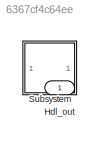
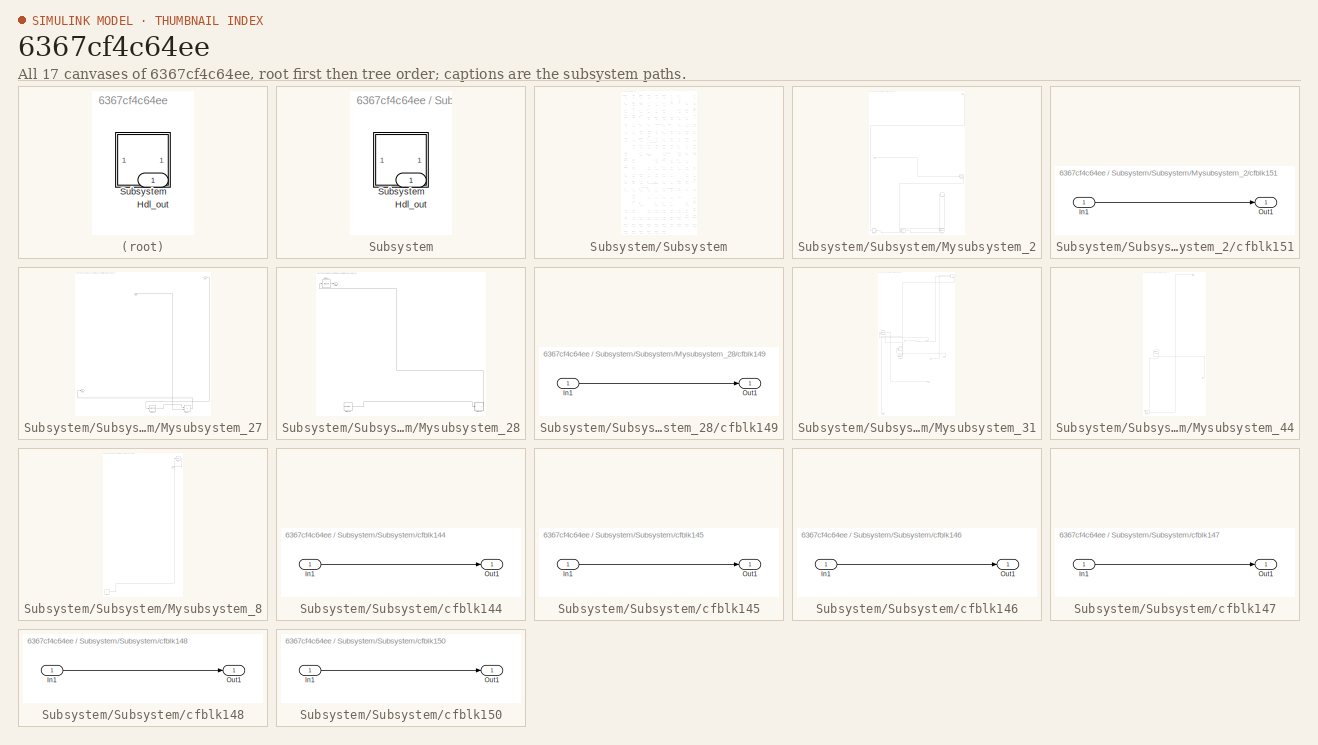
[diagram: thumbnail index - all 17 canvases of the model, root first then tree order]
MODEL slx_6367cf4c64ee
KIND model
CONFIG AbsTol = auto
CONFIG EnableMultiTasking = off
CONFIG FixedStep = auto
CONFIG MaxStep = auto
CONFIG MinStep = auto
CONFIG RelTol = 1e-3
CONFIG SampleTimeConstraint = Unconstrained
CONFIG SolverName = VariableStepAuto
CONFIG StartTime = 0.0
CONFIG StopTime = 10.0
BLOCK [Outport] Hdl_out
  OutDataTypeStr = uint8
BLOCK [SubSystem] Subsystem
BLOCK [Outport] Subsystem/Hdl_out
  OutDataTypeStr = uint8
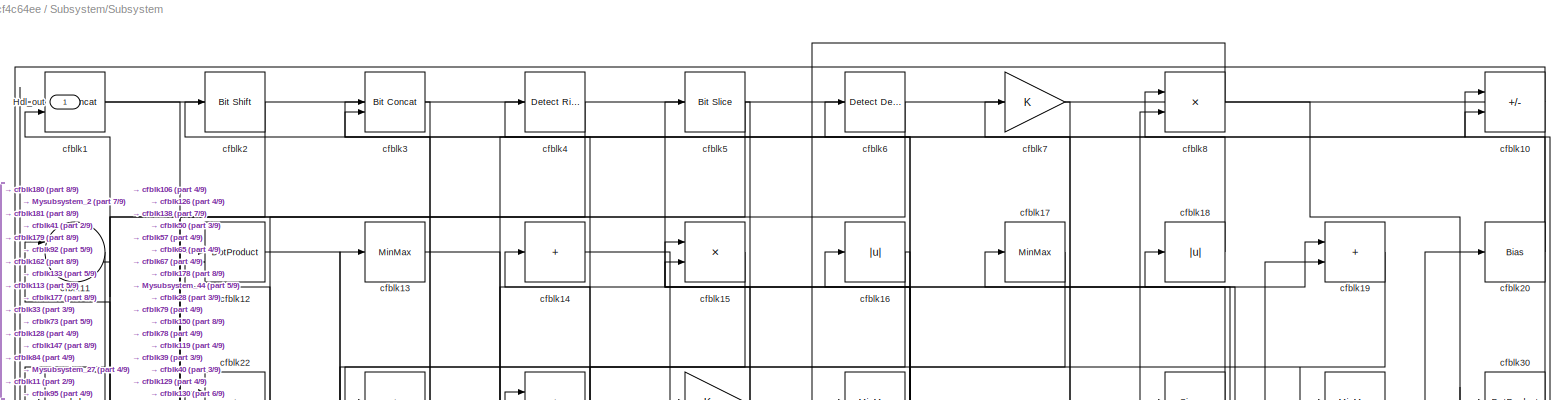
[diagram: Subsystem/Subsystem - part 1/9, full width, top band]
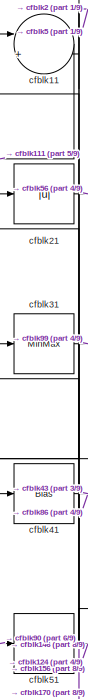
[diagram: Subsystem/Subsystem - part 2/9, top left region]
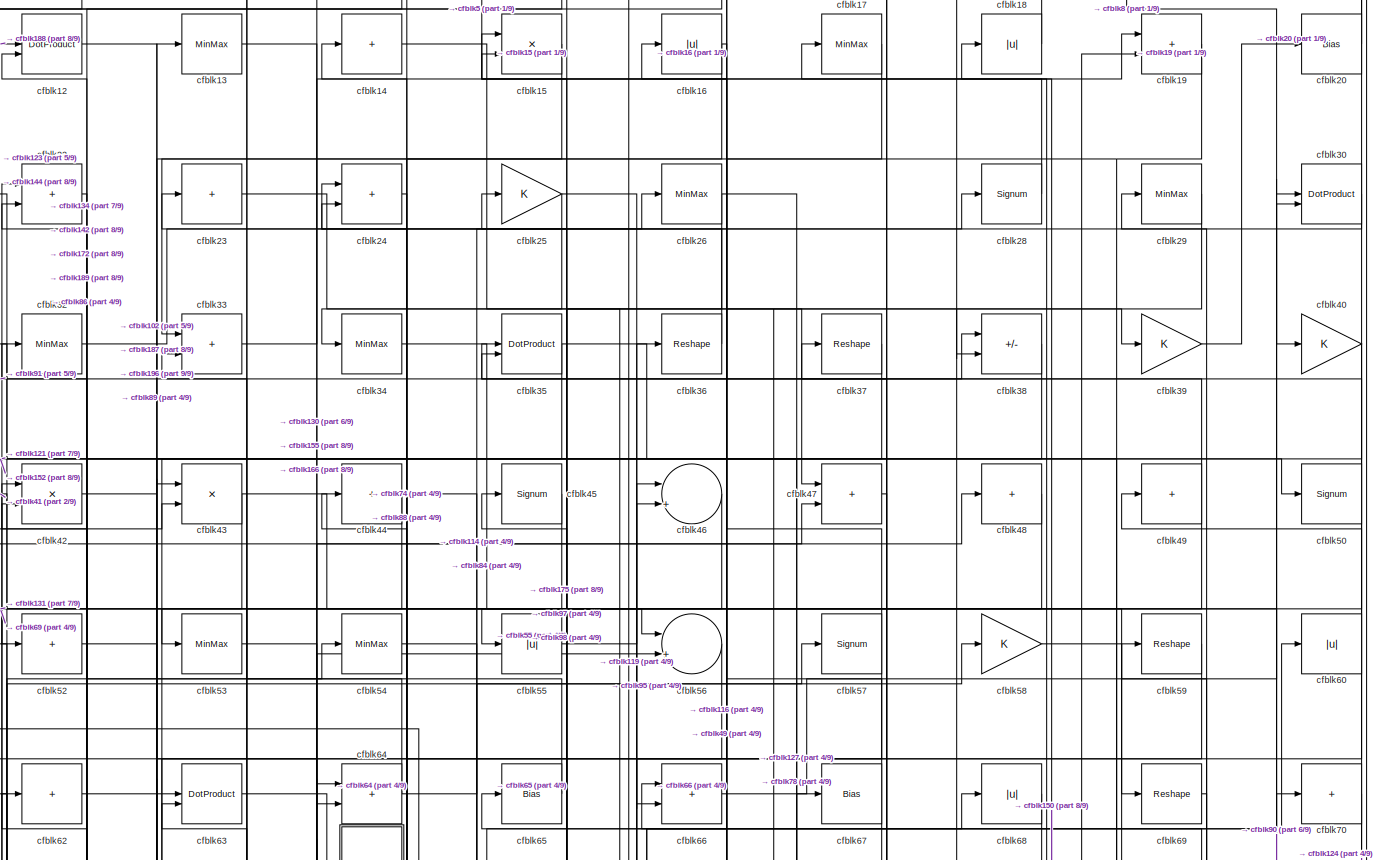
[diagram: Subsystem/Subsystem - part 3/9, full width, top band]
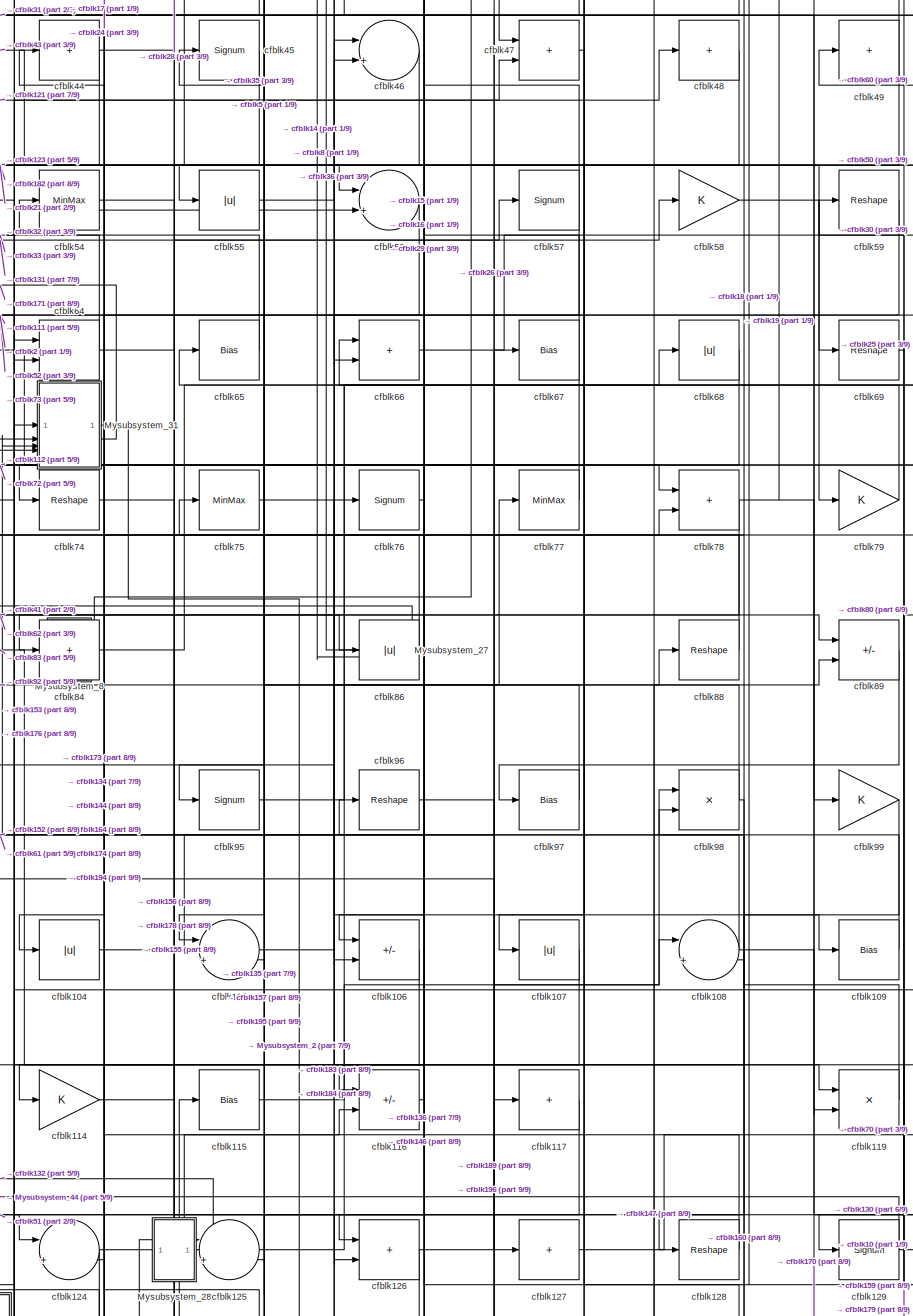
[diagram: Subsystem/Subsystem - part 4/9, central region]
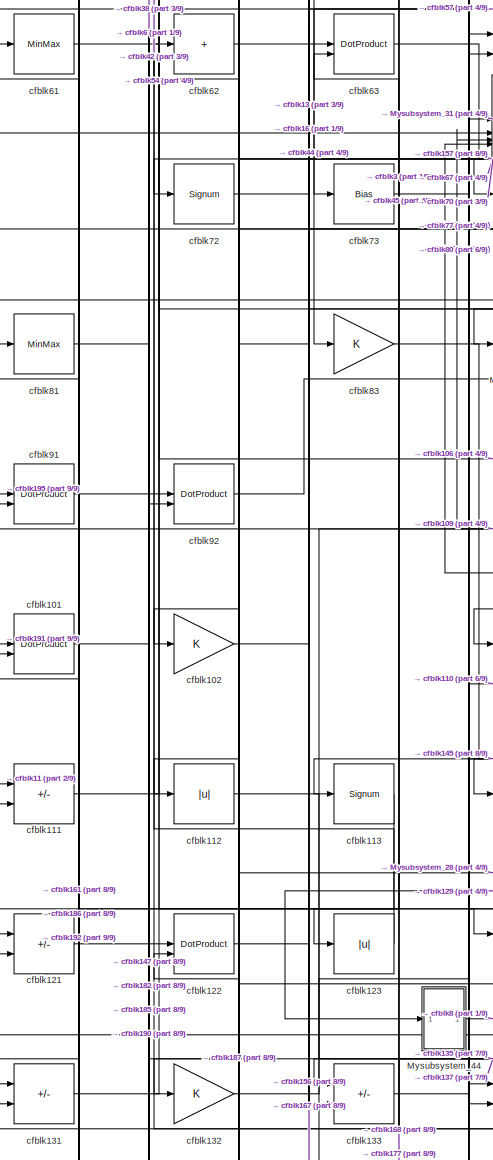
[diagram: Subsystem/Subsystem - part 5/9, middle left region]
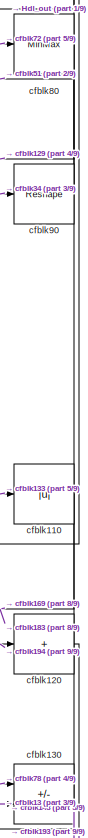
[diagram: Subsystem/Subsystem - part 6/9, middle right region]
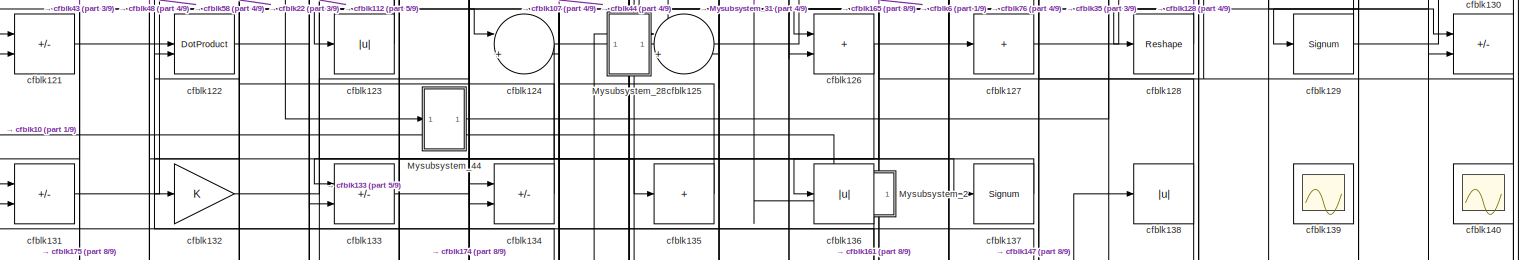
[diagram: Subsystem/Subsystem - part 7/9, full width, middle band]
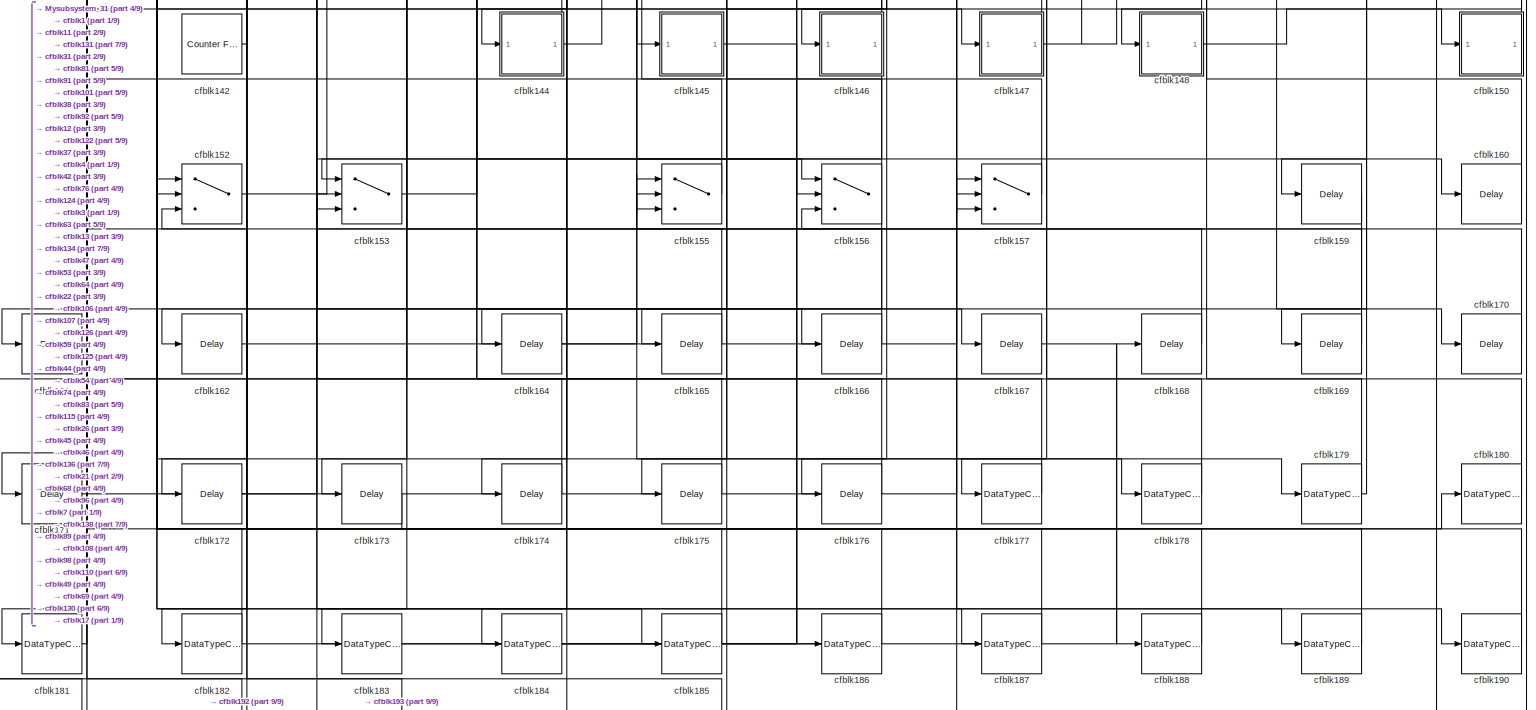
[diagram: Subsystem/Subsystem - part 8/9, full width, bottom band]
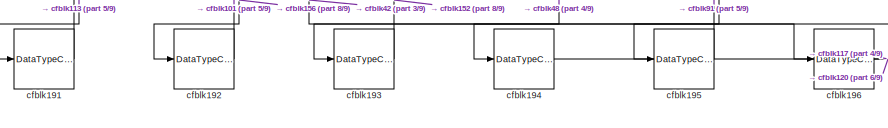
[diagram: Subsystem/Subsystem - part 9/9, bottom left region]
BLOCK [SubSystem] Subsystem/Subsystem
BLOCK [Outport] Subsystem/Subsystem/Hdl_out
  OutDataTypeStr = uint8
BLOCK [SubSystem] Subsystem/Subsystem/Mysubsystem_2
  RTWFcnName = Mysubsystem_2
  RTWFcnNameOpts = User specified
  RTWFileNameOpts = Use function name
  RTWSystemCode = Reusable function
  TreatAsAtomicUnit = on
BLOCK [Inport] Subsystem/Subsystem/Mysubsystem_2/In1
BLOCK [Inport] Subsystem/Subsystem/Mysubsystem_2/In2
  Port = 2
BLOCK [Reshape] Subsystem/Subsystem/Mysubsystem_2/cfblk100
BLOCK [Sum] Subsystem/Subsystem/Mysubsystem_2/cfblk118
  IconShape = rectangular
  Inputs = +
BLOCK [SubSystem] Subsystem/Subsystem/Mysubsystem_2/cfblk151
  LibrarySourceBlock = hdlsllib/Ports &\nSubsystems/Subsystem
BLOCK [Inport] Subsystem/Subsystem/Mysubsystem_2/cfblk151/In1
BLOCK [Outport] Subsystem/Subsystem/Mysubsystem_2/cfblk151/Out1
BLOCK [Switch] Subsystem/Subsystem/Mysubsystem_2/cfblk154
  InputSameDT = off
  SaturateOnIntegerOverflow = off
BLOCK [Delay] Subsystem/Subsystem/Mysubsystem_2/cfblk158
  InputPortMap = u0
  SampleTime = 1
BLOCK [SubSystem] Subsystem/Subsystem/Mysubsystem_27
  RTWFcnName = Mysubsystem_27
  RTWFcnNameOpts = User specified
  RTWFileNameOpts = Use function name
  RTWSystemCode = Reusable function
  TreatAsAtomicUnit = on
BLOCK [Inport] Subsystem/Subsystem/Mysubsystem_27/In1
BLOCK [Inport] Subsystem/Subsystem/Mysubsystem_27/In2
  Port = 2
BLOCK [Outport] Subsystem/Subsystem/Mysubsystem_27/Out1
BLOCK [Signum] Subsystem/Subsystem/Mysubsystem_27/cfblk85
BLOCK [Sum] Subsystem/Subsystem/Mysubsystem_27/cfblk87
  IconShape = rectangular
BLOCK [SubSystem] Subsystem/Subsystem/Mysubsystem_28
  RTWFcnName = Mysubsystem_28
  RTWFcnNameOpts = User specified
  RTWFileNameOpts = Use function name
  RTWSystemCode = Reusable function
  TreatAsAtomicUnit = on
BLOCK [Outport] Subsystem/Subsystem/Mysubsystem_28/Out1
BLOCK [Reference] Subsystem/Subsystem/Mysubsystem_28/cfblk143  REF=hdlsllib/Sources/Counter
Limited
  SourceBlock = hdlsllib/Sources/Counter\nLimited
  SourceType = Counter Limited
BLOCK [SubSystem] Subsystem/Subsystem/Mysubsystem_28/cfblk149
  LibrarySourceBlock = hdlsllib/Ports &\nSubsystems/Subsystem
BLOCK [Inport] Subsystem/Subsystem/Mysubsystem_28/cfblk149/In1
BLOCK [Outport] Subsystem/Subsystem/Mysubsystem_28/cfblk149/Out1
BLOCK [Signum] Subsystem/Subsystem/Mysubsystem_28/cfblk82
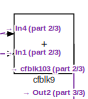
[diagram: Subsystem/Subsystem/Mysubsystem_31 - part 1/3, top right region]
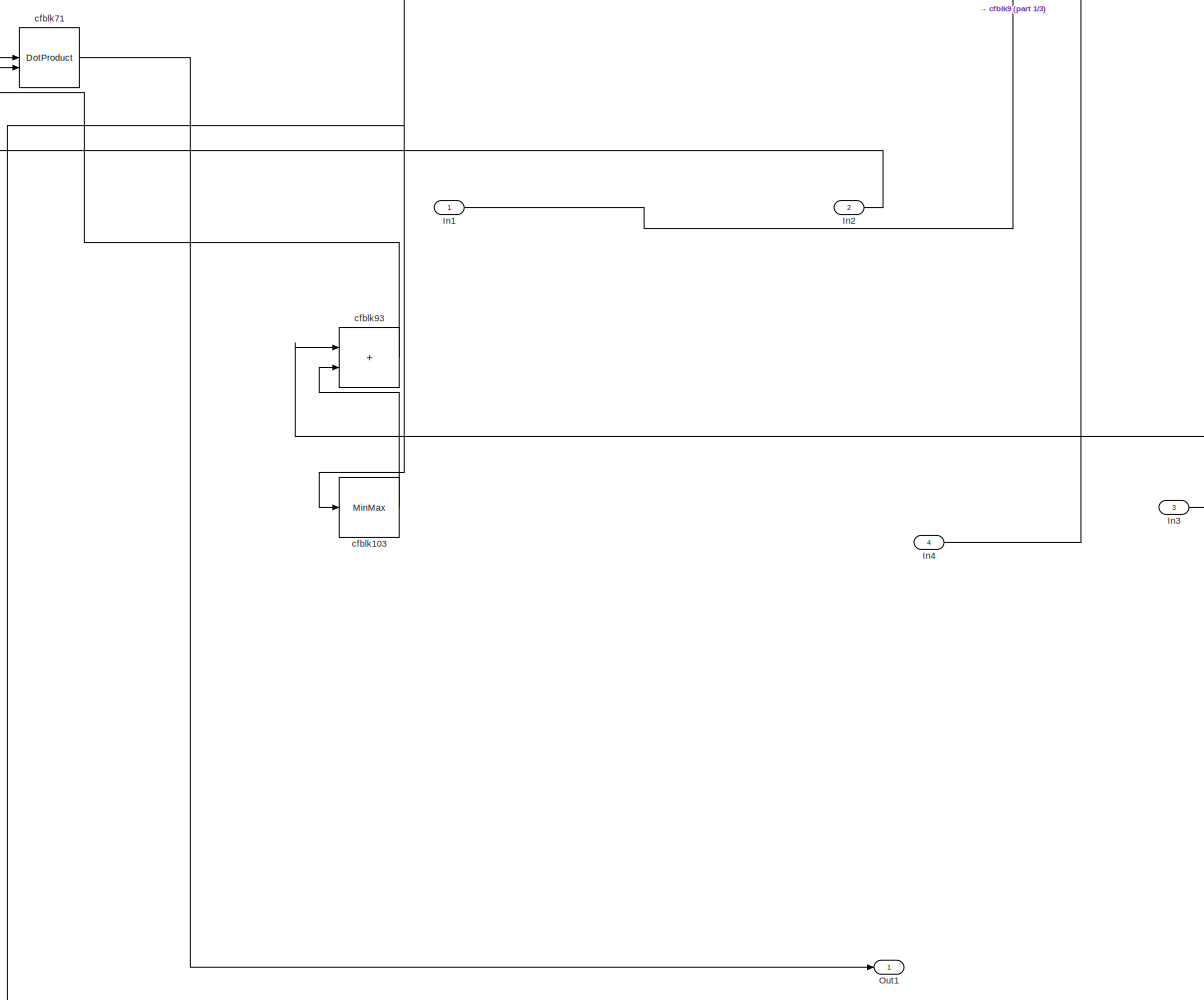
[diagram: Subsystem/Subsystem/Mysubsystem_31 - part 2/3, full width, middle band]
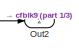
[diagram: Subsystem/Subsystem/Mysubsystem_31 - part 3/3, bottom left region]
BLOCK [SubSystem] Subsystem/Subsystem/Mysubsystem_31
  RTWFcnName = Mysubsystem_31
  RTWFcnNameOpts = User specified
  RTWFileNameOpts = Use function name
  RTWSystemCode = Reusable function
  TreatAsAtomicUnit = on
BLOCK [Inport] Subsystem/Subsystem/Mysubsystem_31/In1
BLOCK [Inport] Subsystem/Subsystem/Mysubsystem_31/In2
  Port = 2
BLOCK [Inport] Subsystem/Subsystem/Mysubsystem_31/In3
  Port = 3
BLOCK [Inport] Subsystem/Subsystem/Mysubsystem_31/In4
  Port = 4
BLOCK [Outport] Subsystem/Subsystem/Mysubsystem_31/Out1
BLOCK [Outport] Subsystem/Subsystem/Mysubsystem_31/Out2
  Port = 2
BLOCK [MinMax] Subsystem/Subsystem/Mysubsystem_31/cfblk103
BLOCK [DotProduct] Subsystem/Subsystem/Mysubsystem_31/cfblk71
  OutDataTypeStr = Inherit: Inherit via internal rule
BLOCK [Sum] Subsystem/Subsystem/Mysubsystem_31/cfblk9
  IconShape = rectangular
BLOCK [Sum] Subsystem/Subsystem/Mysubsystem_31/cfblk93
  IconShape = rectangular
BLOCK [SubSystem] Subsystem/Subsystem/Mysubsystem_44
  RTWFcnName = Mysubsystem_44
  RTWFcnNameOpts = User specified
  RTWFileNameOpts = Use function name
  RTWSystemCode = Reusable function
  TreatAsAtomicUnit = on
BLOCK [Inport] Subsystem/Subsystem/Mysubsystem_44/In1
BLOCK [Outport] Subsystem/Subsystem/Mysubsystem_44/Out1
BLOCK [Delay] Subsystem/Subsystem/Mysubsystem_44/cfblk163
  InputPortMap = u0
  SampleTime = 1
BLOCK [MinMax] Subsystem/Subsystem/Mysubsystem_44/cfblk94
BLOCK [SubSystem] Subsystem/Subsystem/Mysubsystem_8
  RTWFcnName = Mysubsystem_8
  RTWFcnNameOpts = User specified
  RTWFileNameOpts = Use function name
  RTWSystemCode = Reusable function
  TreatAsAtomicUnit = on
BLOCK [Outport] Subsystem/Subsystem/Mysubsystem_8/Out1
BLOCK [Constant] Subsystem/Subsystem/Mysubsystem_8/cfblk141
  SampleTime = -1
BLOCK [Bias] Subsystem/Subsystem/Mysubsystem_8/cfblk27
  Bias = 0.0
  SaturateOnIntegerOverflow = off
BLOCK [Reference] Subsystem/Subsystem/cfblk1  REF=hdlsllib/Logic and Bit
Operations/Bit Concat
  SourceBlock = hdlsllib/Logic and Bit\nOperations/Bit Concat
  SourceType = Bit Concat
BLOCK [Sum] Subsystem/Subsystem/cfblk10
  IconShape = rectangular
  Inputs = +-
  OutDataTypeStr = uint8
BLOCK [DotProduct] Subsystem/Subsystem/cfblk101
  OutDataTypeStr = uint8
BLOCK [Gain] Subsystem/Subsystem/cfblk102
  OutDataTypeStr = uint8
BLOCK [Abs] Subsystem/Subsystem/cfblk104
  OutDataTypeStr = uint8
  SaturateOnIntegerOverflow = off
BLOCK [Sum] Subsystem/Subsystem/cfblk105
  Inputs = |++
  OutDataTypeStr = uint8
BLOCK [Sum] Subsystem/Subsystem/cfblk106
  IconShape = rectangular
  Inputs = +-
  OutDataTypeStr = uint8
BLOCK [Abs] Subsystem/Subsystem/cfblk107
  OutDataTypeStr = uint8
  SaturateOnIntegerOverflow = off
BLOCK [Sum] Subsystem/Subsystem/cfblk108
  Inputs = |++
  OutDataTypeStr = uint8
BLOCK [Bias] Subsystem/Subsystem/cfblk109
  Bias = 0.0
  SaturateOnIntegerOverflow = off
BLOCK [Sum] Subsystem/Subsystem/cfblk11
  Inputs = |++
  OutDataTypeStr = uint8
BLOCK [Abs] Subsystem/Subsystem/cfblk110
  OutDataTypeStr = uint8
  SaturateOnIntegerOverflow = off
BLOCK [Sum] Subsystem/Subsystem/cfblk111
  IconShape = rectangular
  Inputs = +-
  OutDataTypeStr = uint8
BLOCK [Abs] Subsystem/Subsystem/cfblk112
  OutDataTypeStr = uint8
  SaturateOnIntegerOverflow = off
BLOCK [Signum] Subsystem/Subsystem/cfblk113
BLOCK [Gain] Subsystem/Subsystem/cfblk114
  OutDataTypeStr = uint8
BLOCK [Bias] Subsystem/Subsystem/cfblk115
  Bias = 0.0
  SaturateOnIntegerOverflow = off
BLOCK [Sum] Subsystem/Subsystem/cfblk116
  IconShape = rectangular
  Inputs = +-
  OutDataTypeStr = uint8
BLOCK [Sum] Subsystem/Subsystem/cfblk117
  IconShape = rectangular
  Inputs = +
  OutDataTypeStr = uint8
BLOCK [Product] Subsystem/Subsystem/cfblk119
  Inputs = */
  OutDataTypeStr = uint8
  RndMeth = Zero
  SaturateOnIntegerOverflow = on
BLOCK [DotProduct] Subsystem/Subsystem/cfblk12
  OutDataTypeStr = uint8
BLOCK [Sum] Subsystem/Subsystem/cfblk120
  IconShape = rectangular
  Inputs = +
  OutDataTypeStr = uint8
BLOCK [Sum] Subsystem/Subsystem/cfblk121
  IconShape = rectangular
  Inputs = +-
  OutDataTypeStr = uint8
BLOCK [DotProduct] Subsystem/Subsystem/cfblk122
  OutDataTypeStr = uint8
BLOCK [Abs] Subsystem/Subsystem/cfblk123
  OutDataTypeStr = uint8
  SaturateOnIntegerOverflow = off
BLOCK [Sum] Subsystem/Subsystem/cfblk124
  Inputs = |++
  OutDataTypeStr = uint8
BLOCK [Sum] Subsystem/Subsystem/cfblk125
  Inputs = |++
  OutDataTypeStr = uint8
BLOCK [Sum] Subsystem/Subsystem/cfblk126
  IconShape = rectangular
  OutDataTypeStr = uint8
BLOCK [Sum] Subsystem/Subsystem/cfblk127
  IconShape = rectangular
  Inputs = +
  OutDataTypeStr = uint8
BLOCK [Reshape] Subsystem/Subsystem/cfblk128
BLOCK [Signum] Subsystem/Subsystem/cfblk129
BLOCK [MinMax] Subsystem/Subsystem/cfblk13
  OutDataTypeStr = uint8
BLOCK [Sum] Subsystem/Subsystem/cfblk130
  IconShape = rectangular
  Inputs = +-
  OutDataTypeStr = uint8
BLOCK [Sum] Subsystem/Subsystem/cfblk131
  IconShape = rectangular
  Inputs = +-
  OutDataTypeStr = uint8
BLOCK [Gain] Subsystem/Subsystem/cfblk132
  OutDataTypeStr = uint8
BLOCK [Sum] Subsystem/Subsystem/cfblk133
  IconShape = rectangular
  Inputs = +-
  OutDataTypeStr = uint8
BLOCK [Sum] Subsystem/Subsystem/cfblk134
  IconShape = rectangular
  Inputs = +-
  OutDataTypeStr = uint8
BLOCK [Sum] Subsystem/Subsystem/cfblk135
  IconShape = rectangular
  Inputs = +
  OutDataTypeStr = uint8
BLOCK [Abs] Subsystem/Subsystem/cfblk136
  OutDataTypeStr = uint8
  SaturateOnIntegerOverflow = off
BLOCK [Signum] Subsystem/Subsystem/cfblk137
BLOCK [Abs] Subsystem/Subsystem/cfblk138
  OutDataTypeStr = uint8
  SaturateOnIntegerOverflow = off
BLOCK [Scope] Subsystem/Subsystem/cfblk139
  Floating = on
  NumInputPorts = 1
  ScopeSpecificationString = Simulink.scopes.TimeScopeBlockCfg('CurrentConfiguration', extmgr.ConfigurationSet(extmgr.Configuration('Core','General UI',true,'FigureColor',[0.156862745098039 0.156862745098039 0.156862745098039]),extmgr.Configuration('Core','Source UI',true),extmgr.Configuration('Sources','WiredSimulink',true,'DataLoggingVariableName','ScopeData1','DataLoggingSaveFormat','StructureWithTime','DataLoggingLimitDat...<+2713ch>
BLOCK [Sum] Subsystem/Subsystem/cfblk14
  IconShape = rectangular
  Inputs = +
  OutDataTypeStr = uint8
BLOCK [Scope] Subsystem/Subsystem/cfblk140
  Floating = on
  NumInputPorts = 1
  ScopeSpecificationString = Simulink.scopes.TimeScopeBlockCfg('CurrentConfiguration', extmgr.ConfigurationSet(extmgr.Configuration('Core','General UI',true,'FigureColor',[0.156862745098039 0.156862745098039 0.156862745098039]),extmgr.Configuration('Core','Source UI',true),extmgr.Configuration('Sources','WiredSimulink',true,'DataLoggingSaveFormat','StructureWithTime','DataLoggingLimitDataPoints',true,'DataLoggingDecimation','...<+2674ch>
BLOCK [Reference] Subsystem/Subsystem/cfblk142  REF=hdlsllib/Sources/Counter
Free-Running
  SourceBlock = hdlsllib/Sources/Counter\nFree-Running
  SourceType = Counter Free-Running
BLOCK [SubSystem] Subsystem/Subsystem/cfblk144
  LibrarySourceBlock = hdlsllib/Ports &\nSubsystems/Subsystem
BLOCK [Inport] Subsystem/Subsystem/cfblk144/In1
BLOCK [Outport] Subsystem/Subsystem/cfblk144/Out1
BLOCK [SubSystem] Subsystem/Subsystem/cfblk145
  LibrarySourceBlock = hdlsllib/Ports &\nSubsystems/Subsystem
BLOCK [Inport] Subsystem/Subsystem/cfblk145/In1
BLOCK [Outport] Subsystem/Subsystem/cfblk145/Out1
BLOCK [SubSystem] Subsystem/Subsystem/cfblk146
  LibrarySourceBlock = hdlsllib/Ports &\nSubsystems/Subsystem
BLOCK [Inport] Subsystem/Subsystem/cfblk146/In1
BLOCK [Outport] Subsystem/Subsystem/cfblk146/Out1
BLOCK [SubSystem] Subsystem/Subsystem/cfblk147
  LibrarySourceBlock = hdlsllib/Ports &\nSubsystems/Subsystem
BLOCK [Inport] Subsystem/Subsystem/cfblk147/In1
BLOCK [Outport] Subsystem/Subsystem/cfblk147/Out1
BLOCK [SubSystem] Subsystem/Subsystem/cfblk148
  LibrarySourceBlock = hdlsllib/Ports &\nSubsystems/Subsystem
BLOCK [Inport] Subsystem/Subsystem/cfblk148/In1
BLOCK [Outport] Subsystem/Subsystem/cfblk148/Out1
BLOCK [Product] Subsystem/Subsystem/cfblk15
  Inputs = */
  OutDataTypeStr = uint8
  RndMeth = Zero
  SaturateOnIntegerOverflow = on
BLOCK [SubSystem] Subsystem/Subsystem/cfblk150
  LibrarySourceBlock = hdlsllib/Ports &\nSubsystems/Subsystem
BLOCK [Inport] Subsystem/Subsystem/cfblk150/In1
BLOCK [Outport] Subsystem/Subsystem/cfblk150/Out1
BLOCK [Switch] Subsystem/Subsystem/cfblk152
  InputSameDT = off
  OutDataTypeStr = uint8
  SaturateOnIntegerOverflow = off
BLOCK [Switch] Subsystem/Subsystem/cfblk153
  InputSameDT = off
  OutDataTypeStr = uint8
  SaturateOnIntegerOverflow = off
BLOCK [Switch] Subsystem/Subsystem/cfblk155
  InputSameDT = off
  OutDataTypeStr = uint8
  SaturateOnIntegerOverflow = off
BLOCK [Switch] Subsystem/Subsystem/cfblk156
  InputSameDT = off
  OutDataTypeStr = uint8
  SaturateOnIntegerOverflow = off
BLOCK [Switch] Subsystem/Subsystem/cfblk157
  InputSameDT = off
  OutDataTypeStr = uint8
  SaturateOnIntegerOverflow = off
BLOCK [Delay] Subsystem/Subsystem/cfblk159
  InputPortMap = u0
  SampleTime = 1
BLOCK [Abs] Subsystem/Subsystem/cfblk16
  OutDataTypeStr = uint8
  SaturateOnIntegerOverflow = off
BLOCK [Delay] Subsystem/Subsystem/cfblk160
  InputPortMap = u0
  SampleTime = 1
BLOCK [Delay] Subsystem/Subsystem/cfblk161
  InputPortMap = u0
  SampleTime = 1
BLOCK [Delay] Subsystem/Subsystem/cfblk162
  InputPortMap = u0
  SampleTime = 1
BLOCK [Delay] Subsystem/Subsystem/cfblk164
  InputPortMap = u0
  SampleTime = 1
BLOCK [Delay] Subsystem/Subsystem/cfblk165
  InputPortMap = u0
  SampleTime = 1
BLOCK [Delay] Subsystem/Subsystem/cfblk166
  InputPortMap = u0
  SampleTime = 1
BLOCK [Delay] Subsystem/Subsystem/cfblk167
  InputPortMap = u0
  SampleTime = 1
BLOCK [Delay] Subsystem/Subsystem/cfblk168
  InputPortMap = u0
  SampleTime = 1
BLOCK [Delay] Subsystem/Subsystem/cfblk169
  InputPortMap = u0
  SampleTime = 1
BLOCK [MinMax] Subsystem/Subsystem/cfblk17
  OutDataTypeStr = uint8
BLOCK [Delay] Subsystem/Subsystem/cfblk170
  InputPortMap = u0
  SampleTime = 1
BLOCK [Delay] Subsystem/Subsystem/cfblk171
  InputPortMap = u0
  SampleTime = 1
BLOCK [Delay] Subsystem/Subsystem/cfblk172
  InputPortMap = u0
  SampleTime = 1
BLOCK [Delay] Subsystem/Subsystem/cfblk173
  InputPortMap = u0
  SampleTime = 1
BLOCK [Delay] Subsystem/Subsystem/cfblk174
  InputPortMap = u0
  SampleTime = 1
BLOCK [Delay] Subsystem/Subsystem/cfblk175
  InputPortMap = u0
  SampleTime = 1
BLOCK [Delay] Subsystem/Subsystem/cfblk176
  InputPortMap = u0
  SampleTime = 1
BLOCK [DataTypeConversion] Subsystem/Subsystem/cfblk177
  OutDataTypeStr = uint8
  RndMeth = Floor
  SaturateOnIntegerOverflow = off
BLOCK [DataTypeConversion] Subsystem/Subsystem/cfblk178
  OutDataTypeStr = uint8
  RndMeth = Floor
  SaturateOnIntegerOverflow = off
BLOCK [DataTypeConversion] Subsystem/Subsystem/cfblk179
  OutDataTypeStr = uint8
  RndMeth = Floor
  SaturateOnIntegerOverflow = off
BLOCK [Abs] Subsystem/Subsystem/cfblk18
  OutDataTypeStr = uint8
  SaturateOnIntegerOverflow = off
BLOCK [DataTypeConversion] Subsystem/Subsystem/cfblk180
  OutDataTypeStr = uint8
  RndMeth = Floor
  SaturateOnIntegerOverflow = off
BLOCK [DataTypeConversion] Subsystem/Subsystem/cfblk181
  OutDataTypeStr = uint8
  RndMeth = Floor
  SaturateOnIntegerOverflow = off
BLOCK [DataTypeConversion] Subsystem/Subsystem/cfblk182
  OutDataTypeStr = uint8
  RndMeth = Floor
  SaturateOnIntegerOverflow = off
BLOCK [DataTypeConversion] Subsystem/Subsystem/cfblk183
  OutDataTypeStr = uint8
  RndMeth = Floor
  SaturateOnIntegerOverflow = off
BLOCK [DataTypeConversion] Subsystem/Subsystem/cfblk184
  OutDataTypeStr = uint8
  RndMeth = Floor
  SaturateOnIntegerOverflow = off
BLOCK [DataTypeConversion] Subsystem/Subsystem/cfblk185
  OutDataTypeStr = uint8
  RndMeth = Floor
  SaturateOnIntegerOverflow = off
BLOCK [DataTypeConversion] Subsystem/Subsystem/cfblk186
  OutDataTypeStr = uint8
  RndMeth = Floor
  SaturateOnIntegerOverflow = off
BLOCK [DataTypeConversion] Subsystem/Subsystem/cfblk187
  OutDataTypeStr = uint8
  RndMeth = Floor
  SaturateOnIntegerOverflow = off
BLOCK [DataTypeConversion] Subsystem/Subsystem/cfblk188
  OutDataTypeStr = uint8
  RndMeth = Floor
  SaturateOnIntegerOverflow = off
BLOCK [DataTypeConversion] Subsystem/Subsystem/cfblk189
  OutDataTypeStr = uint8
  RndMeth = Floor
  SaturateOnIntegerOverflow = off
BLOCK [Sum] Subsystem/Subsystem/cfblk19
  IconShape = rectangular
  OutDataTypeStr = uint8
BLOCK [DataTypeConversion] Subsystem/Subsystem/cfblk190
  OutDataTypeStr = uint8
  RndMeth = Floor
  SaturateOnIntegerOverflow = off
BLOCK [DataTypeConversion] Subsystem/Subsystem/cfblk191
  OutDataTypeStr = uint8
  RndMeth = Floor
  SaturateOnIntegerOverflow = off
BLOCK [DataTypeConversion] Subsystem/Subsystem/cfblk192
  OutDataTypeStr = uint8
  RndMeth = Floor
  SaturateOnIntegerOverflow = off
BLOCK [DataTypeConversion] Subsystem/Subsystem/cfblk193
  OutDataTypeStr = uint8
  RndMeth = Floor
  SaturateOnIntegerOverflow = off
BLOCK [DataTypeConversion] Subsystem/Subsystem/cfblk194
  OutDataTypeStr = uint8
  RndMeth = Floor
  SaturateOnIntegerOverflow = off
BLOCK [DataTypeConversion] Subsystem/Subsystem/cfblk195
  OutDataTypeStr = uint8
  RndMeth = Floor
  SaturateOnIntegerOverflow = off
BLOCK [DataTypeConversion] Subsystem/Subsystem/cfblk196
  OutDataTypeStr = uint8
  RndMeth = Floor
  SaturateOnIntegerOverflow = off
BLOCK [Reference] Subsystem/Subsystem/cfblk2  REF=hdlsllib/Logic and Bit
Operations/Bit Shift
  SourceBlock = hdlsllib/Logic and Bit\nOperations/Bit Shift
  SourceType = Bit Shift
BLOCK [Bias] Subsystem/Subsystem/cfblk20
  Bias = 0.0
  SaturateOnIntegerOverflow = off
BLOCK [Abs] Subsystem/Subsystem/cfblk21
  OutDataTypeStr = uint8
  SaturateOnIntegerOverflow = off
BLOCK [Sum] Subsystem/Subsystem/cfblk22
  IconShape = rectangular
  OutDataTypeStr = uint8
BLOCK [Sum] Subsystem/Subsystem/cfblk23
  IconShape = rectangular
  Inputs = +
  OutDataTypeStr = uint8
BLOCK [Sum] Subsystem/Subsystem/cfblk24
  IconShape = rectangular
  OutDataTypeStr = uint8
BLOCK [Gain] Subsystem/Subsystem/cfblk25
  OutDataTypeStr = uint8
BLOCK [MinMax] Subsystem/Subsystem/cfblk26
  OutDataTypeStr = uint8
BLOCK [Signum] Subsystem/Subsystem/cfblk28
BLOCK [MinMax] Subsystem/Subsystem/cfblk29
  OutDataTypeStr = uint8
BLOCK [Reference] Subsystem/Subsystem/cfblk3  REF=hdlsllib/Logic and Bit
Operations/Bit Concat
  SourceBlock = hdlsllib/Logic and Bit\nOperations/Bit Concat
  SourceType = Bit Concat
BLOCK [DotProduct] Subsystem/Subsystem/cfblk30
  OutDataTypeStr = uint8
BLOCK [MinMax] Subsystem/Subsystem/cfblk31
  OutDataTypeStr = uint8
BLOCK [MinMax] Subsystem/Subsystem/cfblk32
  OutDataTypeStr = uint8
BLOCK [Sum] Subsystem/Subsystem/cfblk33
  IconShape = rectangular
  OutDataTypeStr = uint8
BLOCK [MinMax] Subsystem/Subsystem/cfblk34
  OutDataTypeStr = uint8
BLOCK [DotProduct] Subsystem/Subsystem/cfblk35
  OutDataTypeStr = uint8
BLOCK [Reshape] Subsystem/Subsystem/cfblk36
BLOCK [Reshape] Subsystem/Subsystem/cfblk37
BLOCK [Sum] Subsystem/Subsystem/cfblk38
  IconShape = rectangular
  Inputs = +-
  OutDataTypeStr = uint8
BLOCK [Gain] Subsystem/Subsystem/cfblk39
  OutDataTypeStr = uint8
BLOCK [Reference] Subsystem/Subsystem/cfblk4  REF=hdlsllib/Logic and Bit
Operations/Detect Rise
Nonnegative
  SourceBlock = hdlsllib/Logic and Bit\nOperations/Detect Rise\nNonnegative
  SourceType = Detect Rise Nonnegative
BLOCK [Gain] Subsystem/Subsystem/cfblk40
  OutDataTypeStr = uint8
BLOCK [Bias] Subsystem/Subsystem/cfblk41
  Bias = 0.0
  SaturateOnIntegerOverflow = off
BLOCK [Product] Subsystem/Subsystem/cfblk42
  Inputs = */
  OutDataTypeStr = uint8
  RndMeth = Zero
  SaturateOnIntegerOverflow = on
BLOCK [Product] Subsystem/Subsystem/cfblk43
  Inputs = */
  OutDataTypeStr = uint8
  RndMeth = Zero
  SaturateOnIntegerOverflow = on
BLOCK [Sum] Subsystem/Subsystem/cfblk44
  IconShape = rectangular
  Inputs = +
  OutDataTypeStr = uint8
BLOCK [Signum] Subsystem/Subsystem/cfblk45
BLOCK [Sum] Subsystem/Subsystem/cfblk46
  Inputs = |++
  OutDataTypeStr = uint8
BLOCK [Sum] Subsystem/Subsystem/cfblk47
  IconShape = rectangular
  OutDataTypeStr = uint8
BLOCK [Sum] Subsystem/Subsystem/cfblk48
  IconShape = rectangular
  Inputs = +
  OutDataTypeStr = uint8
BLOCK [Sum] Subsystem/Subsystem/cfblk49
  IconShape = rectangular
  Inputs = +
  OutDataTypeStr = uint8
BLOCK [Reference] Subsystem/Subsystem/cfblk5  REF=hdlsllib/Logic and Bit
Operations/Bit Slice
  SourceBlock = hdlsllib/Logic and Bit\nOperations/Bit Slice
  SourceType = Bit Slice
BLOCK [Signum] Subsystem/Subsystem/cfblk50
BLOCK [Sum] Subsystem/Subsystem/cfblk51
  IconShape = rectangular
  Inputs = +
  OutDataTypeStr = uint8
BLOCK [Sum] Subsystem/Subsystem/cfblk52
  IconShape = rectangular
  Inputs = +
  OutDataTypeStr = uint8
BLOCK [MinMax] Subsystem/Subsystem/cfblk53
  OutDataTypeStr = uint8
BLOCK [MinMax] Subsystem/Subsystem/cfblk54
  OutDataTypeStr = uint8
BLOCK [Abs] Subsystem/Subsystem/cfblk55
  OutDataTypeStr = uint8
  SaturateOnIntegerOverflow = off
BLOCK [Sum] Subsystem/Subsystem/cfblk56
  Inputs = |++
  OutDataTypeStr = uint8
BLOCK [Signum] Subsystem/Subsystem/cfblk57
BLOCK [Gain] Subsystem/Subsystem/cfblk58
  OutDataTypeStr = uint8
BLOCK [Reshape] Subsystem/Subsystem/cfblk59
BLOCK [Reference] Subsystem/Subsystem/cfblk6  REF=simulink/Logic and Bit
Operations/Detect
Decrease
  LibrarySourceBlock = hdlsllib/Logic and Bit\nOperations/Detect\nDecrease
  SourceBlock = simulink/Logic and Bit\nOperations/Detect\nDecrease
  SourceType = Detect Decrease
BLOCK [Abs] Subsystem/Subsystem/cfblk60
  OutDataTypeStr = uint8
  SaturateOnIntegerOverflow = off
BLOCK [MinMax] Subsystem/Subsystem/cfblk61
  OutDataTypeStr = uint8
BLOCK [Sum] Subsystem/Subsystem/cfblk62
  IconShape = rectangular
  Inputs = +
  OutDataTypeStr = uint8
BLOCK [DotProduct] Subsystem/Subsystem/cfblk63
  OutDataTypeStr = uint8
BLOCK [Sum] Subsystem/Subsystem/cfblk64
  IconShape = rectangular
  OutDataTypeStr = uint8
BLOCK [Bias] Subsystem/Subsystem/cfblk65
  Bias = 0.0
  SaturateOnIntegerOverflow = off
BLOCK [Sum] Subsystem/Subsystem/cfblk66
  IconShape = rectangular
  OutDataTypeStr = uint8
BLOCK [Bias] Subsystem/Subsystem/cfblk67
  Bias = 0.0
  SaturateOnIntegerOverflow = off
BLOCK [Abs] Subsystem/Subsystem/cfblk68
  OutDataTypeStr = uint8
  SaturateOnIntegerOverflow = off
BLOCK [Reshape] Subsystem/Subsystem/cfblk69
BLOCK [Gain] Subsystem/Subsystem/cfblk7
  OutDataTypeStr = uint8
BLOCK [Sum] Subsystem/Subsystem/cfblk70
  IconShape = rectangular
  Inputs = +
  OutDataTypeStr = uint8
BLOCK [Signum] Subsystem/Subsystem/cfblk72
BLOCK [Bias] Subsystem/Subsystem/cfblk73
  Bias = 0.0
  SaturateOnIntegerOverflow = off
BLOCK [Reshape] Subsystem/Subsystem/cfblk74
BLOCK [MinMax] Subsystem/Subsystem/cfblk75
  OutDataTypeStr = uint8
BLOCK [Signum] Subsystem/Subsystem/cfblk76
BLOCK [MinMax] Subsystem/Subsystem/cfblk77
  OutDataTypeStr = uint8
BLOCK [Sum] Subsystem/Subsystem/cfblk78
  IconShape = rectangular
  OutDataTypeStr = uint8
BLOCK [Gain] Subsystem/Subsystem/cfblk79
  OutDataTypeStr = uint8
BLOCK [Product] Subsystem/Subsystem/cfblk8
  Inputs = */
  OutDataTypeStr = uint8
  RndMeth = Zero
  SaturateOnIntegerOverflow = on
BLOCK [MinMax] Subsystem/Subsystem/cfblk80
  OutDataTypeStr = uint8
BLOCK [MinMax] Subsystem/Subsystem/cfblk81
  OutDataTypeStr = uint8
BLOCK [Gain] Subsystem/Subsystem/cfblk83
  OutDataTypeStr = uint8
BLOCK [Sum] Subsystem/Subsystem/cfblk84
  IconShape = rectangular
  Inputs = +
  OutDataTypeStr = uint8
BLOCK [Abs] Subsystem/Subsystem/cfblk86
  OutDataTypeStr = uint8
  SaturateOnIntegerOverflow = off
BLOCK [Reshape] Subsystem/Subsystem/cfblk88
BLOCK [Sum] Subsystem/Subsystem/cfblk89
  IconShape = rectangular
  Inputs = +-
  OutDataTypeStr = uint8
BLOCK [Reshape] Subsystem/Subsystem/cfblk90
BLOCK [DotProduct] Subsystem/Subsystem/cfblk91
  OutDataTypeStr = uint8
BLOCK [DotProduct] Subsystem/Subsystem/cfblk92
  OutDataTypeStr = uint8
BLOCK [Signum] Subsystem/Subsystem/cfblk95
BLOCK [Reshape] Subsystem/Subsystem/cfblk96
BLOCK [Bias] Subsystem/Subsystem/cfblk97
  Bias = 0.0
  SaturateOnIntegerOverflow = off
BLOCK [Product] Subsystem/Subsystem/cfblk98
  Inputs = */
  OutDataTypeStr = uint8
  RndMeth = Zero
  SaturateOnIntegerOverflow = on
BLOCK [Gain] Subsystem/Subsystem/cfblk99
  OutDataTypeStr = uint8
LINE Subsystem/Subsystem/Mysubsystem_2/In1:1 -> Subsystem/Subsystem/Mysubsystem_2/cfblk151:1
LINE Subsystem/Subsystem/Mysubsystem_2/In2:1 -> Subsystem/Subsystem/Mysubsystem_2/cfblk100:1
LINE Subsystem/Subsystem/Mysubsystem_2/cfblk100:1 -> Subsystem/Subsystem/Mysubsystem_2/cfblk154:3
LINE Subsystem/Subsystem/Mysubsystem_2/cfblk118:1 -> Subsystem/Subsystem/Mysubsystem_2/cfblk158:1
LINE Subsystem/Subsystem/Mysubsystem_2/cfblk151/In1:1 -> Subsystem/Subsystem/Mysubsystem_2/cfblk151/Out1:1
LINE Subsystem/Subsystem/Mysubsystem_2/cfblk151:1 -> Subsystem/Subsystem/Mysubsystem_2/cfblk154:2
LINE Subsystem/Subsystem/Mysubsystem_2/cfblk154:1 -> Subsystem/Subsystem/Mysubsystem_2/cfblk118:1
LINE Subsystem/Subsystem/Mysubsystem_2/cfblk158:1 -> Subsystem/Subsystem/Mysubsystem_2/cfblk154:1
LINE Subsystem/Subsystem/Mysubsystem_27/In1:1 -> Subsystem/Subsystem/Mysubsystem_27/cfblk85:1
LINE Subsystem/Subsystem/Mysubsystem_27/In2:1 -> Subsystem/Subsystem/Mysubsystem_27/cfblk87:2
LINE Subsystem/Subsystem/Mysubsystem_27/cfblk85:1 -> Subsystem/Subsystem/Mysubsystem_27/cfblk87:1
LINE Subsystem/Subsystem/Mysubsystem_27/cfblk87:1 -> Subsystem/Subsystem/Mysubsystem_27/Out1:1
LINE Subsystem/Subsystem/Mysubsystem_27:1 -> Subsystem/Subsystem/Mysubsystem_31:2
LINE Subsystem/Subsystem/Mysubsystem_28/cfblk143:1 -> Subsystem/Subsystem/Mysubsystem_28/cfblk149:1
LINE Subsystem/Subsystem/Mysubsystem_28/cfblk149/In1:1 -> Subsystem/Subsystem/Mysubsystem_28/cfblk149/Out1:1
LINE Subsystem/Subsystem/Mysubsystem_28/cfblk149:1 -> Subsystem/Subsystem/Mysubsystem_28/cfblk82:1
LINE Subsystem/Subsystem/Mysubsystem_28/cfblk82:1 -> Subsystem/Subsystem/Mysubsystem_28/Out1:1
NET Subsystem/Subsystem/Mysubsystem_28:1 -> Subsystem/Subsystem/cfblk132:1, Subsystem/Subsystem/cfblk78:2
LINE Subsystem/Subsystem/Mysubsystem_31/In1:1 -> Subsystem/Subsystem/Mysubsystem_31/cfblk9:2
LINE Subsystem/Subsystem/Mysubsystem_31/In2:1 -> Subsystem/Subsystem/Mysubsystem_31/cfblk71:1
LINE Subsystem/Subsystem/Mysubsystem_31/In3:1 -> Subsystem/Subsystem/Mysubsystem_31/cfblk93:1
LINE Subsystem/Subsystem/Mysubsystem_31/In4:1 -> Subsystem/Subsystem/Mysubsystem_31/cfblk9:1
LINE Subsystem/Subsystem/Mysubsystem_31/cfblk103:1 -> Subsystem/Subsystem/Mysubsystem_31/cfblk93:2
LINE Subsystem/Subsystem/Mysubsystem_31/cfblk71:1 -> Subsystem/Subsystem/Mysubsystem_31/Out1:1
LINE Subsystem/Subsystem/Mysubsystem_31/cfblk93:1 -> Subsystem/Subsystem/Mysubsystem_31/cfblk71:2
NET Subsystem/Subsystem/Mysubsystem_31/cfblk9:1 -> Subsystem/Subsystem/Mysubsystem_31/Out2:1, Subsystem/Subsystem/Mysubsystem_31/cfblk103:1
LINE Subsystem/Subsystem/Mysubsystem_31:1 -> Subsystem/Subsystem/Mysubsystem_2:2
LINE Subsystem/Subsystem/Mysubsystem_31:2 -> Subsystem/Subsystem/cfblk171:1
LINE Subsystem/Subsystem/Mysubsystem_44/In1:1 -> Subsystem/Subsystem/Mysubsystem_44/cfblk94:1
LINE Subsystem/Subsystem/Mysubsystem_44/cfblk163:1 -> Subsystem/Subsystem/Mysubsystem_44/Out1:1
LINE Subsystem/Subsystem/Mysubsystem_44/cfblk94:1 -> Subsystem/Subsystem/Mysubsystem_44/cfblk163:1
LINE Subsystem/Subsystem/Mysubsystem_44:1 -> Subsystem/Subsystem/cfblk8:2
LINE Subsystem/Subsystem/Mysubsystem_8/cfblk141:1 -> Subsystem/Subsystem/Mysubsystem_8/cfblk27:1
LINE Subsystem/Subsystem/Mysubsystem_8/cfblk27:1 -> Subsystem/Subsystem/Mysubsystem_8/Out1:1
NET Subsystem/Subsystem/Mysubsystem_8:1 -> Subsystem/Subsystem/cfblk105:1, Subsystem/Subsystem/cfblk47:1
LINE Subsystem/Subsystem/cfblk101:1 -> Subsystem/Subsystem/cfblk190:1
LINE Subsystem/Subsystem/cfblk102:1 -> Subsystem/Subsystem/cfblk13:1
LINE Subsystem/Subsystem/cfblk104:1 -> Subsystem/Subsystem/cfblk67:1
LINE Subsystem/Subsystem/cfblk105:1 -> Subsystem/Subsystem/cfblk88:1
LINE Subsystem/Subsystem/cfblk106:1 -> Subsystem/Subsystem/cfblk174:1
NET Subsystem/Subsystem/cfblk107:1 -> Subsystem/Subsystem/cfblk134:2, Subsystem/Subsystem/cfblk144:1
NET Subsystem/Subsystem/cfblk108:1 -> Subsystem/Subsystem/Mysubsystem_31:3, Subsystem/Subsystem/cfblk170:1
LINE Subsystem/Subsystem/cfblk109:1 -> Subsystem/Subsystem/cfblk61:1
LINE Subsystem/Subsystem/cfblk10:1 -> Subsystem/Subsystem/Mysubsystem_2:1
NET Subsystem/Subsystem/cfblk110:1 -> Subsystem/Subsystem/cfblk169:1, Subsystem/Subsystem/cfblk183:1
LINE Subsystem/Subsystem/cfblk111:1 -> Subsystem/Subsystem/cfblk54:1
LINE Subsystem/Subsystem/cfblk112:1 -> Subsystem/Subsystem/cfblk135:1
LINE Subsystem/Subsystem/cfblk113:1 -> Subsystem/Subsystem/cfblk191:1
LINE Subsystem/Subsystem/cfblk114:1 -> Subsystem/Subsystem/cfblk28:1
LINE Subsystem/Subsystem/cfblk115:1 -> Subsystem/Subsystem/cfblk98:1
LINE Subsystem/Subsystem/cfblk116:1 -> Subsystem/Subsystem/cfblk96:1
LINE Subsystem/Subsystem/cfblk117:1 -> Subsystem/Subsystem/cfblk195:1
NET Subsystem/Subsystem/cfblk119:1 -> Subsystem/Subsystem/cfblk66:1, Subsystem/Subsystem/cfblk75:1
LINE Subsystem/Subsystem/cfblk11:1 -> Subsystem/Subsystem/cfblk111:1
LINE Subsystem/Subsystem/cfblk120:1 -> Subsystem/Subsystem/cfblk193:1
NET Subsystem/Subsystem/cfblk121:1 -> Subsystem/Subsystem/cfblk137:1, Subsystem/Subsystem/cfblk48:1
NET Subsystem/Subsystem/cfblk122:1 -> Subsystem/Subsystem/cfblk156:1, Subsystem/Subsystem/cfblk167:1
LINE Subsystem/Subsystem/cfblk123:1 -> Subsystem/Subsystem/cfblk42:1
NET Subsystem/Subsystem/cfblk124:1 -> Subsystem/Subsystem/cfblk116:2, Subsystem/Subsystem/cfblk173:1
LINE Subsystem/Subsystem/cfblk125:1 -> Subsystem/Subsystem/cfblk68:1
NET Subsystem/Subsystem/cfblk126:1 -> Subsystem/Subsystem/Mysubsystem_31:4, Subsystem/Subsystem/cfblk108:1, Subsystem/Subsystem/cfblk184:1
LINE Subsystem/Subsystem/cfblk127:1 -> Subsystem/Subsystem/cfblk70:1
NET Subsystem/Subsystem/cfblk128:1 -> Subsystem/Subsystem/cfblk121:1, Subsystem/Subsystem/cfblk14:1
NET Subsystem/Subsystem/cfblk129:1 -> Subsystem/Subsystem/Mysubsystem_44:1, Subsystem/Subsystem/cfblk10:1, Subsystem/Subsystem/cfblk59:1
LINE Subsystem/Subsystem/cfblk12:1 -> Subsystem/Subsystem/cfblk187:1
NET Subsystem/Subsystem/cfblk130:1 -> Subsystem/Subsystem/Hdl_out:1, Subsystem/Subsystem/cfblk148:1
LINE Subsystem/Subsystem/cfblk131:1 -> Subsystem/Subsystem/cfblk58:1
LINE Subsystem/Subsystem/cfblk132:1 -> Subsystem/Subsystem/cfblk56:2
LINE Subsystem/Subsystem/cfblk133:1 -> Subsystem/Subsystem/cfblk110:1
LINE Subsystem/Subsystem/cfblk134:1 -> Subsystem/Subsystem/cfblk22:2
LINE Subsystem/Subsystem/cfblk135:1 -> Subsystem/Subsystem/cfblk44:1
LINE Subsystem/Subsystem/cfblk136:1 -> Subsystem/Subsystem/cfblk161:1
LINE Subsystem/Subsystem/cfblk137:1 -> Subsystem/Subsystem/cfblk133:1
NET Subsystem/Subsystem/cfblk138:1 -> Subsystem/Subsystem/cfblk165:1, Subsystem/Subsystem/cfblk6:1
NET Subsystem/Subsystem/cfblk13:1 -> Subsystem/Subsystem/cfblk130:2, Subsystem/Subsystem/cfblk166:1
LINE Subsystem/Subsystem/cfblk142:1 -> Subsystem/Subsystem/cfblk42:2
LINE Subsystem/Subsystem/cfblk144/In1:1 -> Subsystem/Subsystem/cfblk144/Out1:1
NET Subsystem/Subsystem/cfblk144:1 -> Subsystem/Subsystem/cfblk125:1, Subsystem/Subsystem/cfblk22:1
LINE Subsystem/Subsystem/cfblk145/In1:1 -> Subsystem/Subsystem/cfblk145/Out1:1
LINE Subsystem/Subsystem/cfblk145:1 -> Subsystem/Subsystem/cfblk186:1
LINE Subsystem/Subsystem/cfblk146/In1:1 -> Subsystem/Subsystem/cfblk146/Out1:1
NET Subsystem/Subsystem/cfblk146:1 -> Subsystem/Subsystem/cfblk153:1, Subsystem/Subsystem/cfblk21:1
LINE Subsystem/Subsystem/cfblk147/In1:1 -> Subsystem/Subsystem/cfblk147/Out1:1
NET Subsystem/Subsystem/cfblk147:1 -> Subsystem/Subsystem/cfblk138:1, Subsystem/Subsystem/cfblk4:1, Subsystem/Subsystem/cfblk89:2
LINE Subsystem/Subsystem/cfblk148/In1:1 -> Subsystem/Subsystem/cfblk148/Out1:1
LINE Subsystem/Subsystem/cfblk148:1 -> Subsystem/Subsystem/cfblk150:1
LINE Subsystem/Subsystem/cfblk14:1 -> Subsystem/Subsystem/Mysubsystem_27:2
LINE Subsystem/Subsystem/cfblk150/In1:1 -> Subsystem/Subsystem/cfblk150/Out1:1
NET Subsystem/Subsystem/cfblk150:1 -> Subsystem/Subsystem/cfblk17:1, Subsystem/Subsystem/cfblk37:1
LINE Subsystem/Subsystem/cfblk152:1 -> Subsystem/Subsystem/cfblk76:1
LINE Subsystem/Subsystem/cfblk153:1 -> Subsystem/Subsystem/cfblk47:2
LINE Subsystem/Subsystem/cfblk155:1 -> Subsystem/Subsystem/cfblk115:1
NET Subsystem/Subsystem/cfblk156:1 -> Subsystem/Subsystem/cfblk192:1, Subsystem/Subsystem/cfblk31:1
LINE Subsystem/Subsystem/cfblk157:1 -> Subsystem/Subsystem/cfblk45:1
LINE Subsystem/Subsystem/cfblk159:1 -> Subsystem/Subsystem/cfblk181:1
LINE Subsystem/Subsystem/cfblk15:1 -> Subsystem/Subsystem/cfblk33:1
LINE Subsystem/Subsystem/cfblk160:1 -> Subsystem/Subsystem/cfblk98:2
LINE Subsystem/Subsystem/cfblk161:1 -> Subsystem/Subsystem/cfblk91:2
LINE Subsystem/Subsystem/cfblk162:1 -> Subsystem/Subsystem/cfblk155:2
LINE Subsystem/Subsystem/cfblk164:1 -> Subsystem/Subsystem/cfblk157:1
LINE Subsystem/Subsystem/cfblk165:1 -> Subsystem/Subsystem/cfblk153:2
LINE Subsystem/Subsystem/cfblk166:1 -> Subsystem/Subsystem/cfblk155:1
LINE Subsystem/Subsystem/cfblk167:1 -> Subsystem/Subsystem/cfblk188:1
LINE Subsystem/Subsystem/cfblk168:1 -> Subsystem/Subsystem/cfblk63:2
LINE Subsystem/Subsystem/cfblk169:1 -> Subsystem/Subsystem/cfblk156:3
NET Subsystem/Subsystem/cfblk16:1 -> Subsystem/Subsystem/cfblk126:1, Subsystem/Subsystem/cfblk133:2, Subsystem/Subsystem/cfblk65:1
LINE Subsystem/Subsystem/cfblk170:1 -> Subsystem/Subsystem/cfblk11:1
LINE Subsystem/Subsystem/cfblk171:1 -> Subsystem/Subsystem/cfblk153:3
LINE Subsystem/Subsystem/cfblk172:1 -> Subsystem/Subsystem/cfblk157:2
LINE Subsystem/Subsystem/cfblk173:1 -> Subsystem/Subsystem/cfblk180:1
LINE Subsystem/Subsystem/cfblk174:1 -> Subsystem/Subsystem/cfblk134:1
LINE Subsystem/Subsystem/cfblk175:1 -> Subsystem/Subsystem/cfblk131:2
LINE Subsystem/Subsystem/cfblk176:1 -> Subsystem/Subsystem/cfblk64:1
NET Subsystem/Subsystem/cfblk177:1 -> Subsystem/Subsystem/cfblk3:2, Subsystem/Subsystem/cfblk63:1
LINE Subsystem/Subsystem/cfblk178:1 -> Subsystem/Subsystem/cfblk7:1
NET Subsystem/Subsystem/cfblk179:1 -> Subsystem/Subsystem/cfblk108:2, Subsystem/Subsystem/cfblk49:1
LINE Subsystem/Subsystem/cfblk17:1 -> Subsystem/Subsystem/cfblk84:1
LINE Subsystem/Subsystem/cfblk180:1 -> Subsystem/Subsystem/cfblk1:1
LINE Subsystem/Subsystem/cfblk181:1 -> Subsystem/Subsystem/cfblk1:2
NET Subsystem/Subsystem/cfblk182:1 -> Subsystem/Subsystem/cfblk168:1, Subsystem/Subsystem/cfblk92:1
LINE Subsystem/Subsystem/cfblk183:1 -> Subsystem/Subsystem/cfblk46:1
LINE Subsystem/Subsystem/cfblk184:1 -> Subsystem/Subsystem/cfblk46:2
LINE Subsystem/Subsystem/cfblk185:1 -> Subsystem/Subsystem/cfblk122:1
LINE Subsystem/Subsystem/cfblk186:1 -> Subsystem/Subsystem/cfblk81:1
LINE Subsystem/Subsystem/cfblk187:1 -> Subsystem/Subsystem/cfblk122:2
LINE Subsystem/Subsystem/cfblk188:1 -> Subsystem/Subsystem/cfblk12:1
LINE Subsystem/Subsystem/cfblk189:1 -> Subsystem/Subsystem/cfblk12:2
LINE Subsystem/Subsystem/cfblk18:1 -> Subsystem/Subsystem/cfblk8:1
LINE Subsystem/Subsystem/cfblk190:1 -> Subsystem/Subsystem/cfblk152:1
LINE Subsystem/Subsystem/cfblk191:1 -> Subsystem/Subsystem/cfblk101:1
LINE Subsystem/Subsystem/cfblk192:1 -> Subsystem/Subsystem/cfblk101:2
LINE Subsystem/Subsystem/cfblk193:1 -> Subsystem/Subsystem/cfblk152:3
LINE Subsystem/Subsystem/cfblk194:1 -> Subsystem/Subsystem/cfblk120:1
LINE Subsystem/Subsystem/cfblk195:1 -> Subsystem/Subsystem/cfblk91:1
LINE Subsystem/Subsystem/cfblk196:1 -> Subsystem/Subsystem/cfblk117:1
NET Subsystem/Subsystem/cfblk19:1 -> Subsystem/Subsystem/cfblk106:1, Subsystem/Subsystem/cfblk119:2
LINE Subsystem/Subsystem/cfblk1:1 -> Subsystem/Subsystem/cfblk179:1
LINE Subsystem/Subsystem/cfblk20:1 -> Subsystem/Subsystem/cfblk3:1
LINE Subsystem/Subsystem/cfblk21:1 -> Subsystem/Subsystem/cfblk56:1
LINE Subsystem/Subsystem/cfblk22:1 -> Subsystem/Subsystem/cfblk52:1
LINE Subsystem/Subsystem/cfblk23:1 -> Subsystem/Subsystem/cfblk39:1
LINE Subsystem/Subsystem/cfblk24:1 -> Subsystem/Subsystem/cfblk74:1
NET Subsystem/Subsystem/cfblk25:1 -> Subsystem/Subsystem/cfblk119:1, Subsystem/Subsystem/cfblk34:1
NET Subsystem/Subsystem/cfblk26:1 -> Subsystem/Subsystem/cfblk175:1, Subsystem/Subsystem/cfblk78:1
LINE Subsystem/Subsystem/cfblk28:1 -> Subsystem/Subsystem/cfblk5:1
NET Subsystem/Subsystem/cfblk29:1 -> Subsystem/Subsystem/cfblk116:1, Subsystem/Subsystem/cfblk38:2
LINE Subsystem/Subsystem/cfblk2:1 -> Subsystem/Subsystem/cfblk41:1
LINE Subsystem/Subsystem/cfblk30:1 -> Subsystem/Subsystem/cfblk24:2
LINE Subsystem/Subsystem/cfblk31:1 -> Subsystem/Subsystem/cfblk99:1
LINE Subsystem/Subsystem/cfblk32:1 -> Subsystem/Subsystem/cfblk26:1
LINE Subsystem/Subsystem/cfblk33:1 -> Subsystem/Subsystem/cfblk19:1
LINE Subsystem/Subsystem/cfblk34:1 -> Subsystem/Subsystem/cfblk90:1
NET Subsystem/Subsystem/cfblk35:1 -> Subsystem/Subsystem/cfblk121:2, Subsystem/Subsystem/cfblk127:1
LINE Subsystem/Subsystem/cfblk36:1 -> Subsystem/Subsystem/cfblk23:1
LINE Subsystem/Subsystem/cfblk37:1 -> Subsystem/Subsystem/cfblk172:1
LINE Subsystem/Subsystem/cfblk38:1 -> Subsystem/Subsystem/cfblk152:2
LINE Subsystem/Subsystem/cfblk39:1 -> Subsystem/Subsystem/cfblk20:1
LINE Subsystem/Subsystem/cfblk3:1 -> Subsystem/Subsystem/cfblk113:1
LINE Subsystem/Subsystem/cfblk40:1 -> Subsystem/Subsystem/cfblk53:1
NET Subsystem/Subsystem/cfblk41:1 -> Subsystem/Subsystem/cfblk43:2, Subsystem/Subsystem/cfblk86:1
NET Subsystem/Subsystem/cfblk42:1 -> Subsystem/Subsystem/cfblk196:1, Subsystem/Subsystem/cfblk50:1
NET Subsystem/Subsystem/cfblk43:1 -> Subsystem/Subsystem/cfblk131:1, Subsystem/Subsystem/cfblk69:1
NET Subsystem/Subsystem/cfblk44:1 -> Subsystem/Subsystem/cfblk156:2, Subsystem/Subsystem/cfblk83:1
LINE Subsystem/Subsystem/cfblk45:1 -> Subsystem/Subsystem/cfblk123:1
LINE Subsystem/Subsystem/cfblk46:1 -> Subsystem/Subsystem/cfblk182:1
LINE Subsystem/Subsystem/cfblk47:1 -> Subsystem/Subsystem/cfblk107:1
LINE Subsystem/Subsystem/cfblk48:1 -> Subsystem/Subsystem/cfblk194:1
NET Subsystem/Subsystem/cfblk49:1 -> Subsystem/Subsystem/cfblk146:1, Subsystem/Subsystem/cfblk25:1
LINE Subsystem/Subsystem/cfblk4:1 -> Subsystem/Subsystem/cfblk162:1
NET Subsystem/Subsystem/cfblk50:1 -> Subsystem/Subsystem/cfblk15:1, Subsystem/Subsystem/cfblk16:1, Subsystem/Subsystem/cfblk55:1
LINE Subsystem/Subsystem/cfblk51:1 -> Subsystem/Subsystem/cfblk124:1
LINE Subsystem/Subsystem/cfblk52:1 -> Subsystem/Subsystem/cfblk64:2
LINE Subsystem/Subsystem/cfblk53:1 -> Subsystem/Subsystem/cfblk155:3
LINE Subsystem/Subsystem/cfblk54:1 -> Subsystem/Subsystem/cfblk178:1
LINE Subsystem/Subsystem/cfblk55:1 -> Subsystem/Subsystem/cfblk36:1
LINE Subsystem/Subsystem/cfblk56:1 -> Subsystem/Subsystem/cfblk73:1
NET Subsystem/Subsystem/cfblk57:1 -> Subsystem/Subsystem/cfblk111:2, Subsystem/Subsystem/cfblk125:2, Subsystem/Subsystem/cfblk2:1
LINE Subsystem/Subsystem/cfblk58:1 -> Subsystem/Subsystem/cfblk79:1
LINE Subsystem/Subsystem/cfblk59:1 -> Subsystem/Subsystem/cfblk164:1
NET Subsystem/Subsystem/cfblk5:1 -> Subsystem/Subsystem/cfblk11:2, Subsystem/Subsystem/cfblk95:1
NET Subsystem/Subsystem/cfblk60:1 -> Subsystem/Subsystem/cfblk29:1, Subsystem/Subsystem/cfblk66:2
LINE Subsystem/Subsystem/cfblk61:1 -> Subsystem/Subsystem/cfblk106:2
NET Subsystem/Subsystem/cfblk62:1 -> Subsystem/Subsystem/cfblk43:1, Subsystem/Subsystem/cfblk89:1
LINE Subsystem/Subsystem/cfblk63:1 -> Subsystem/Subsystem/cfblk157:3
NET Subsystem/Subsystem/cfblk64:1 -> Subsystem/Subsystem/cfblk33:2, Subsystem/Subsystem/cfblk57:1
LINE Subsystem/Subsystem/cfblk65:1 -> Subsystem/Subsystem/cfblk32:1
LINE Subsystem/Subsystem/cfblk66:1 -> Subsystem/Subsystem/cfblk30:2
NET Subsystem/Subsystem/cfblk67:1 -> Subsystem/Subsystem/cfblk112:1, Subsystem/Subsystem/cfblk15:2
NET Subsystem/Subsystem/cfblk68:1 -> Subsystem/Subsystem/cfblk105:2, Subsystem/Subsystem/cfblk176:1
LINE Subsystem/Subsystem/cfblk69:1 -> Subsystem/Subsystem/cfblk159:1
LINE Subsystem/Subsystem/cfblk6:1 -> Subsystem/Subsystem/cfblk92:2
NET Subsystem/Subsystem/cfblk70:1 -> Subsystem/Subsystem/cfblk102:1, Subsystem/Subsystem/cfblk124:2
LINE Subsystem/Subsystem/cfblk72:1 -> Subsystem/Subsystem/cfblk80:1
LINE Subsystem/Subsystem/cfblk73:1 -> Subsystem/Subsystem/cfblk10:2
LINE Subsystem/Subsystem/cfblk74:1 -> Subsystem/Subsystem/cfblk160:1
LINE Subsystem/Subsystem/cfblk75:1 -> Subsystem/Subsystem/cfblk109:1
LINE Subsystem/Subsystem/cfblk76:1 -> Subsystem/Subsystem/cfblk136:1
LINE Subsystem/Subsystem/cfblk77:1 -> Subsystem/Subsystem/cfblk72:1
NET Subsystem/Subsystem/cfblk78:1 -> Subsystem/Subsystem/cfblk104:1, Subsystem/Subsystem/cfblk130:1, Subsystem/Subsystem/cfblk19:2
LINE Subsystem/Subsystem/cfblk79:1 -> Subsystem/Subsystem/cfblk18:1
LINE Subsystem/Subsystem/cfblk7:1 -> Subsystem/Subsystem/cfblk177:1
LINE Subsystem/Subsystem/cfblk80:1 -> Subsystem/Subsystem/cfblk129:1
LINE Subsystem/Subsystem/cfblk81:1 -> Subsystem/Subsystem/cfblk185:1
NET Subsystem/Subsystem/cfblk83:1 -> Subsystem/Subsystem/Mysubsystem_31:1, Subsystem/Subsystem/cfblk145:1
NET Subsystem/Subsystem/cfblk84:1 -> Subsystem/Subsystem/cfblk126:2, Subsystem/Subsystem/cfblk60:1
LINE Subsystem/Subsystem/cfblk86:1 -> Subsystem/Subsystem/cfblk62:1
LINE Subsystem/Subsystem/cfblk88:1 -> Subsystem/Subsystem/cfblk24:1
LINE Subsystem/Subsystem/cfblk89:1 -> Subsystem/Subsystem/cfblk97:1
NET Subsystem/Subsystem/cfblk8:1 -> Subsystem/Subsystem/Mysubsystem_27:1, Subsystem/Subsystem/cfblk40:1
LINE Subsystem/Subsystem/cfblk90:1 -> Subsystem/Subsystem/cfblk51:1
NET Subsystem/Subsystem/cfblk91:1 -> Subsystem/Subsystem/cfblk147:1, Subsystem/Subsystem/cfblk38:1
LINE Subsystem/Subsystem/cfblk92:1 -> Subsystem/Subsystem/cfblk77:1
LINE Subsystem/Subsystem/cfblk95:1 -> Subsystem/Subsystem/cfblk30:1
LINE Subsystem/Subsystem/cfblk96:1 -> Subsystem/Subsystem/cfblk189:1
LINE Subsystem/Subsystem/cfblk97:1 -> Subsystem/Subsystem/cfblk35:1
NET Subsystem/Subsystem/cfblk98:1 -> Subsystem/Subsystem/cfblk114:1, Subsystem/Subsystem/cfblk35:2
LINE Subsystem/Subsystem/cfblk99:1 -> Subsystem/Subsystem/cfblk128:1
note: NET lines group one-source signal fan-out (src -> all destinations, sorted); 1:1 wires keep LINE
